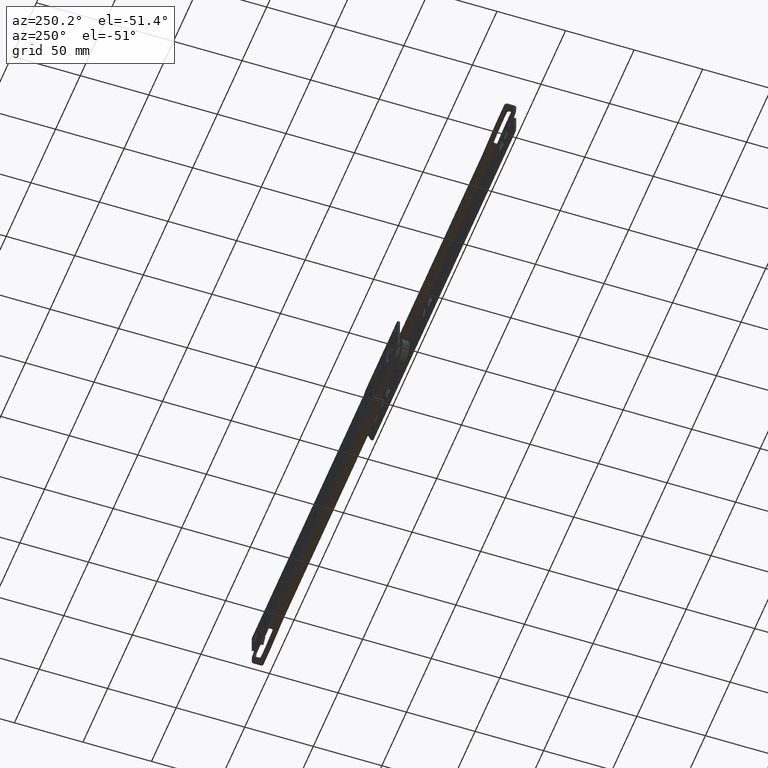
[diagram: clean part render]
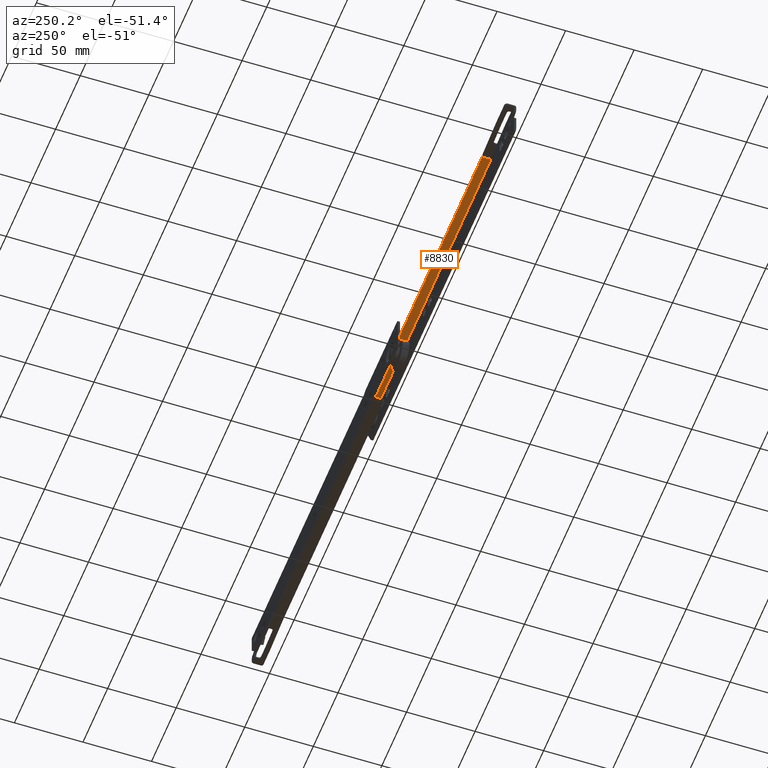
[diagram: same view with one face highlighted and labeled with its STEP entity id]
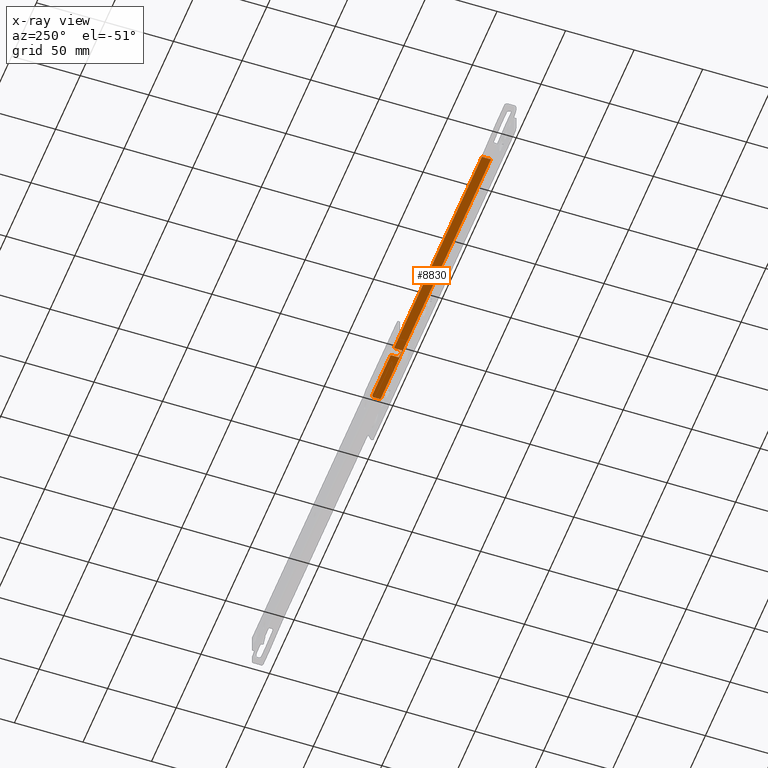
[diagram: x-ray of the same camera — body ghosted, the highlighted face saturated]
A machine part, auxiliary view. The second image highlights one B-rep face of the part: STEP entity #8830.
The next image is the same camera in x-ray: the body ghosted, the highlighted face saturated — about 0% of this face is hidden behind the body in this view.
In plain terms, the highlighted face is a freeform B-spline surface patch.
Its self-contained STEP definition (entity closure, byte-faithful):
#6480=CARTESIAN_POINT('',(271.0,6.0,22.500000000000000));
#6481=VERTEX_POINT('',#6480);
#6487=CARTESIAN_POINT('',(269.0,8.0,22.500000000000000));
#6488=VERTEX_POINT('',#6487);
#6489=CARTESIAN_POINT('',(269.0,8.0,22.500000000000000));
#6490=CARTESIAN_POINT('',(271.0,8.0,22.500000000000000));
#6491=CARTESIAN_POINT('',(271.0,6.0,22.500000000000000));
#6499=(BOUNDED_CURVE()B_SPLINE_CURVE(2,(#6489,#6490,#6491),.UNSPECIFIED.,.F.,.U.)CURVE()GEOMETRIC_REPRESENTATION_ITEM()QUASI_UNIFORM_CURVE()RATIONAL_B_SPLINE_CURVE((1.0,0.707106781186548,1.0))REPRESENTATION_ITEM(''));
#6500=EDGE_CURVE('',#6488,#6481,#6499,.T.);
#6698=CARTESIAN_POINT('',(232.020106000000000,2.0,22.500000000000000));
#6699=VERTEX_POINT('',#6698);
#6707=CARTESIAN_POINT('',(229.469830000000000,2.0,22.500000000000000));
#6708=VERTEX_POINT('',#6707);
#6709=CARTESIAN_POINT('',(232.020106000000000,2.0,22.500000000000000));
#6710=CARTESIAN_POINT('',(229.469830000000000,2.0,22.500000000000000));
#6711=QUASI_UNIFORM_CURVE('',1,(#6709,#6710),.UNSPECIFIED.,.F.,.U.);
#6712=EDGE_CURVE('',#6699,#6708,#6711,.T.);
#6720=CARTESIAN_POINT('',(228.094830000000000,2.000000000000030,22.500000000000000));
#6721=VERTEX_POINT('',#6720);
#6727=CARTESIAN_POINT('',(225.544554000000010,2.0,22.500000000000000));
#6728=VERTEX_POINT('',#6727);
#6729=CARTESIAN_POINT('',(228.094830000000000,2.000000000000030,22.500000000000000));
#6730=CARTESIAN_POINT('',(225.544554000000010,2.0,22.500000000000000));
#6731=QUASI_UNIFORM_CURVE('',1,(#6729,#6730),.UNSPECIFIED.,.F.,.U.);
#6732=EDGE_CURVE('',#6721,#6728,#6731,.T.);
#6763=CARTESIAN_POINT('',(225.544554000000010,8.0,22.500000000000000));
#6764=VERTEX_POINT('',#6763);
#6765=CARTESIAN_POINT('',(225.544554000000010,8.0,22.500000000000000));
#6766=CARTESIAN_POINT('',(225.544554000000010,2.0,22.500000000000000));
#6767=QUASI_UNIFORM_CURVE('',1,(#6765,#6766),.UNSPECIFIED.,.F.,.U.);
#6768=EDGE_CURVE('',#6764,#6728,#6767,.T.);
#6831=CARTESIAN_POINT('',(232.020106000000000,8.0,22.500000000000000));
#6832=VERTEX_POINT('',#6831);
#6838=CARTESIAN_POINT('',(232.020106000000000,8.0,22.500000000000000));
#6839=CARTESIAN_POINT('',(232.020106000000000,2.0,22.500000000000000));
#6840=QUASI_UNIFORM_CURVE('',1,(#6838,#6839),.UNSPECIFIED.,.F.,.U.);
#6841=EDGE_CURVE('',#6832,#6699,#6840,.T.);
#7471=CARTESIAN_POINT('',(271.0,1.500000000000000,22.500000000000000));
#7472=VERTEX_POINT('',#7471);
#8131=CARTESIAN_POINT('',(47.0,8.0,22.500000000000000));
#8132=VERTEX_POINT('',#8131);
#8138=CARTESIAN_POINT('',(47.0,1.500000000000000,22.500000000000000));
#8139=VERTEX_POINT('',#8138);
#8140=CARTESIAN_POINT('',(47.0,8.0,22.500000000000000));
#8141=CARTESIAN_POINT('',(47.0,1.500000000000000,22.500000000000000));
#8142=QUASI_UNIFORM_CURVE('',1,(#8140,#8141),.UNSPECIFIED.,.F.,.U.);
#8143=EDGE_CURVE('',#8132,#8139,#8142,.T.);
#8569=CARTESIAN_POINT('',(271.0,6.0,22.500000000000000));
#8570=CARTESIAN_POINT('',(271.0,1.500000000000000,22.500000000000000));
#8571=QUASI_UNIFORM_CURVE('',1,(#8569,#8570),.UNSPECIFIED.,.F.,.U.);
#8572=EDGE_CURVE('',#6481,#7472,#8571,.T.);
#8661=CARTESIAN_POINT('',(271.0,1.500000000000000,22.500000000000000));
#8662=CARTESIAN_POINT('',(47.0,1.500000000000000,22.500000000000000));
#8663=QUASI_UNIFORM_CURVE('',1,(#8661,#8662),.UNSPECIFIED.,.F.,.U.);
#8664=EDGE_CURVE('',#7472,#8139,#8663,.T.);
#8756=CARTESIAN_POINT('',(269.0,8.0,22.500000000000000));
#8757=CARTESIAN_POINT('',(232.020106000000000,8.0,22.500000000000000));
#8758=QUASI_UNIFORM_CURVE('',1,(#8756,#8757),.UNSPECIFIED.,.F.,.U.);
#8759=EDGE_CURVE('',#6488,#6832,#8758,.T.);
#8764=CARTESIAN_POINT('',(225.544554000000010,8.0,22.500000000000000));
#8765=CARTESIAN_POINT('',(47.0,8.0,22.500000000000000));
#8766=QUASI_UNIFORM_CURVE('',1,(#8764,#8765),.UNSPECIFIED.,.F.,.U.);
#8767=EDGE_CURVE('',#6764,#8132,#8766,.T.);
#8799=CARTESIAN_POINT('',(229.469830000000000,2.0,22.500000000000000));
#8800=CARTESIAN_POINT('',(228.094830000000000,2.000000000000030,22.500000000000000));
#8801=QUASI_UNIFORM_CURVE('',1,(#8799,#8800),.UNSPECIFIED.,.F.,.U.);
#8802=EDGE_CURVE('',#6708,#6721,#8801,.T.);
#8812=CARTESIAN_POINT('',(282.188799565844480,1.175325012598262,22.500000000000000));
#8813=CARTESIAN_POINT('',(35.811194426007290,1.175325012598262,22.500000000000000));
#8814=CARTESIAN_POINT('',(282.188799565844480,8.324675161745322,22.500000000000000));
#8815=CARTESIAN_POINT('',(35.811194426007290,8.324675161745322,22.500000000000000));
#8816=B_SPLINE_SURFACE_WITH_KNOTS('',1,1,((#8812,#8814),(#8813,#8815)),.UNSPECIFIED.,.F.,.F.,.U.,(2,2),(2,2),(0.0,246.377605139837190),(0.0,7.149350149147060),.UNSPECIFIED.);
#8817=ORIENTED_EDGE('',*,*,#8759,.F.);
#8818=ORIENTED_EDGE('',*,*,#6500,.T.);
#8819=ORIENTED_EDGE('',*,*,#8572,.T.);
#8820=ORIENTED_EDGE('',*,*,#8664,.T.);
#8821=ORIENTED_EDGE('',*,*,#8143,.F.);
#8822=ORIENTED_EDGE('',*,*,#8767,.F.);
#8823=ORIENTED_EDGE('',*,*,#6768,.T.);
#8824=ORIENTED_EDGE('',*,*,#6732,.F.);
#8825=ORIENTED_EDGE('',*,*,#8802,.F.);
#8826=ORIENTED_EDGE('',*,*,#6712,.F.);
#8827=ORIENTED_EDGE('',*,*,#6841,.F.);
#8828=EDGE_LOOP('',(#8817,#8818,#8819,#8820,#8821,#8822,#8823,#8824,#8825,#8826,#8827));
#8829=FACE_OUTER_BOUND('',#8828,.T.);
#8830=ADVANCED_FACE('',(#8829),#8816,.T.);